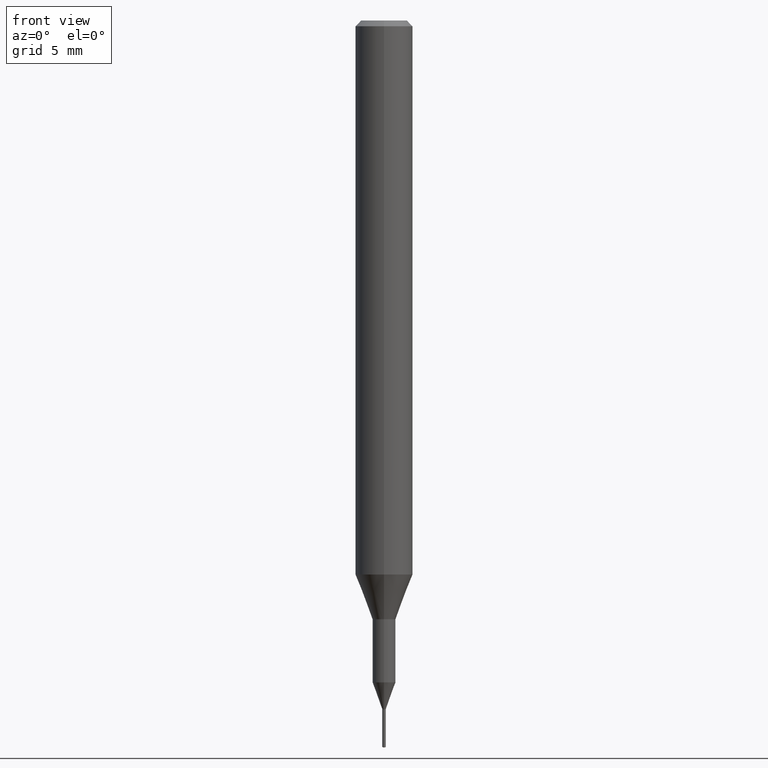
[diagram: clean part render]
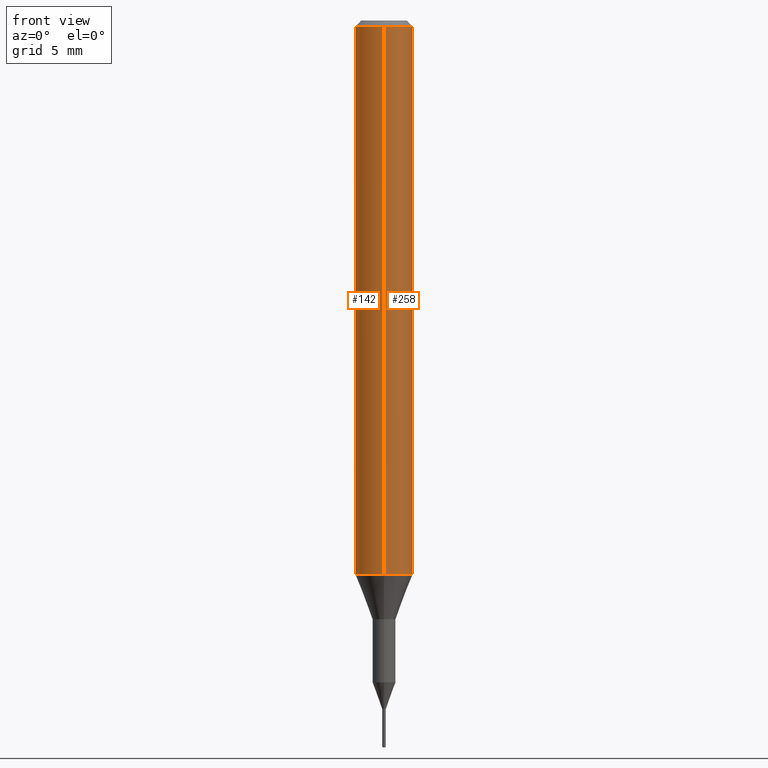
[diagram: same view with one multi-face feature highlighted, each face labeled with its STEP entity id]
A machine part, front view. The highlighted faces form ONE feature: a constant-radius fillet chain: 2 tangent blend faces with common blend radius 1.5 mm. The faces share edges in the B-rep.
Their STEP definitions:
[1] entity #142 (Cylinder):
#118=VERTEX_POINT('',#296);
#124=EDGE_CURVE('',#162,#174,#303,.T.);
#142=ADVANCED_FACE('',(#325),#326,.T.);
#162=VERTEX_POINT('',#348);
#168=EDGE_CURVE('',#174,#180,#354,.T.);
#174=VERTEX_POINT('',#360);
#180=VERTEX_POINT('',#368);
#228=EDGE_CURVE('',#118,#162,#421,.T.);
#248=EDGE_CURVE('',#118,#180,#445,.T.);
#296=CARTESIAN_POINT('',(1.83690953073357E-016,-1.5,-28.955));
#303=CIRCLE('',#498,1.5);
#325=FACE_OUTER_BOUND('',#521,.T.);
#326=CYLINDRICAL_SURFACE('',#522,1.5);
#348=CARTESIAN_POINT('',(1.83690953073357E-016,-1.5,-0.300000000000001));
#354=LINE('',#560,#561);
#360=CARTESIAN_POINT('',(0.0,1.5,-0.300000000000001));
#368=CARTESIAN_POINT('',(0.0,1.5,-28.955));
#421=LINE('',#647,#648);
#445=CIRCLE('',#680,1.5);
#498=AXIS2_PLACEMENT_3D('',#724,#725,#726);
#521=EDGE_LOOP('',(#762,#763,#764,#765));
#522=AXIS2_PLACEMENT_3D('',#766,#767,#768);
#560=CARTESIAN_POINT('',(-1.83690953073357E-016,1.5,-14.6275));
#561=VECTOR('',#804,1.0);
#647=CARTESIAN_POINT('',(1.83690953073357E-016,-1.5,-14.6275));
#648=VECTOR('',#881,1.0);
#680=AXIS2_PLACEMENT_3D('',#918,#919,#920);
#724=CARTESIAN_POINT('',(0.0,0.0,-0.300000000000001));
#725=DIRECTION('',(0.0,0.0,-1.0));
#726=DIRECTION('',(0.0,1.0,0.0));
#762=ORIENTED_EDGE('',*,*,#168,.T.);
#763=ORIENTED_EDGE('',*,*,#248,.F.);
#764=ORIENTED_EDGE('',*,*,#228,.T.);
#765=ORIENTED_EDGE('',*,*,#124,.T.);
#766=CARTESIAN_POINT('',(0.0,0.0,-14.6275));
#767=DIRECTION('',(-0.0,-0.0,1.0));
#768=DIRECTION('',(0.0,1.0,0.0));
#804=DIRECTION('',(0.0,0.0,-1.0));
#881=DIRECTION('',(-0.0,-0.0,1.0));
#918=CARTESIAN_POINT('',(0.0,0.0,-28.955));
#919=DIRECTION('',(0.0,0.0,-1.0));
#920=DIRECTION('',(0.0,1.0,0.0));
[2] entity #258 (Cylinder):
#118=VERTEX_POINT('',#296);
#162=VERTEX_POINT('',#348);
#168=EDGE_CURVE('',#174,#180,#354,.T.);
#174=VERTEX_POINT('',#360);
#180=VERTEX_POINT('',#368);
#190=EDGE_CURVE('',#174,#162,#378,.T.);
#228=EDGE_CURVE('',#118,#162,#421,.T.);
#250=EDGE_CURVE('',#180,#118,#447,.T.);
#258=ADVANCED_FACE('',(#455),#456,.T.);
#296=CARTESIAN_POINT('',(1.83690953073357E-016,-1.5,-28.955));
#348=CARTESIAN_POINT('',(1.83690953073357E-016,-1.5,-0.300000000000001));
#354=LINE('',#560,#561);
#360=CARTESIAN_POINT('',(0.0,1.5,-0.300000000000001));
#368=CARTESIAN_POINT('',(0.0,1.5,-28.955));
#378=CIRCLE('',#591,1.5);
#421=LINE('',#647,#648);
#447=CIRCLE('',#683,1.5);
#455=FACE_OUTER_BOUND('',#691,.T.);
#456=CYLINDRICAL_SURFACE('',#692,1.5);
#560=CARTESIAN_POINT('',(-1.83690953073357E-016,1.5,-14.6275));
#561=VECTOR('',#804,1.0);
#591=AXIS2_PLACEMENT_3D('',#826,#827,#828);
#647=CARTESIAN_POINT('',(1.83690953073357E-016,-1.5,-14.6275));
#648=VECTOR('',#881,1.0);
#683=AXIS2_PLACEMENT_3D('',#921,#922,#923);
#691=EDGE_LOOP('',(#925,#926,#927,#928));
#692=AXIS2_PLACEMENT_3D('',#929,#930,#931);
#804=DIRECTION('',(0.0,0.0,-1.0));
#826=CARTESIAN_POINT('',(0.0,0.0,-0.300000000000001));
#827=DIRECTION('',(0.0,0.0,-1.0));
#828=DIRECTION('',(0.0,1.0,0.0));
#881=DIRECTION('',(-0.0,-0.0,1.0));
#921=CARTESIAN_POINT('',(0.0,0.0,-28.955));
#922=DIRECTION('',(0.0,0.0,-1.0));
#923=DIRECTION('',(0.0,1.0,0.0));
#925=ORIENTED_EDGE('',*,*,#168,.F.);
#926=ORIENTED_EDGE('',*,*,#190,.T.);
#927=ORIENTED_EDGE('',*,*,#228,.F.);
#928=ORIENTED_EDGE('',*,*,#250,.F.);
#929=CARTESIAN_POINT('',(0.0,0.0,-14.6275));
#930=DIRECTION('',(-0.0,-0.0,1.0));
#931=DIRECTION('',(0.0,1.0,0.0));